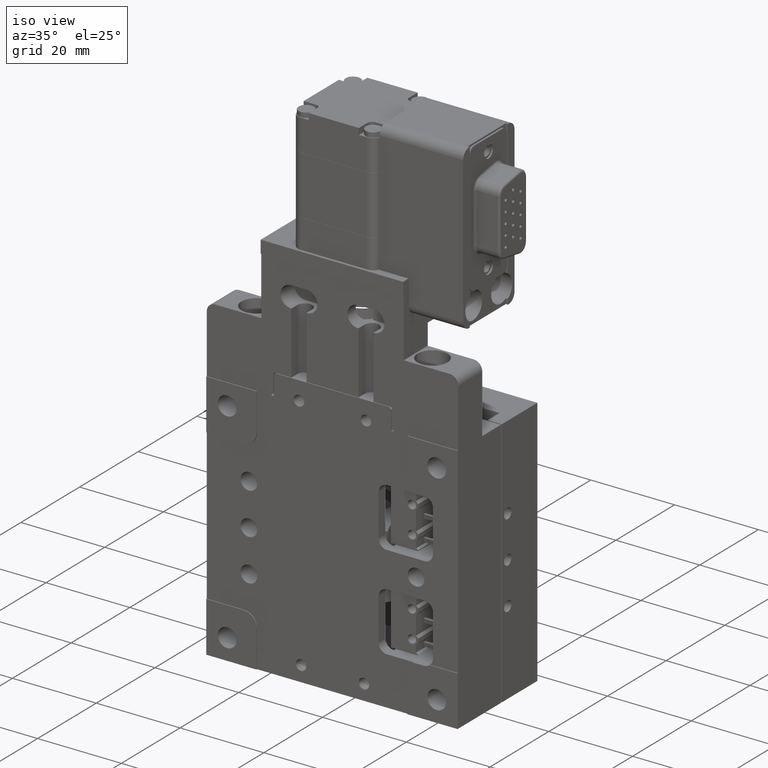
[diagram: clean part render]
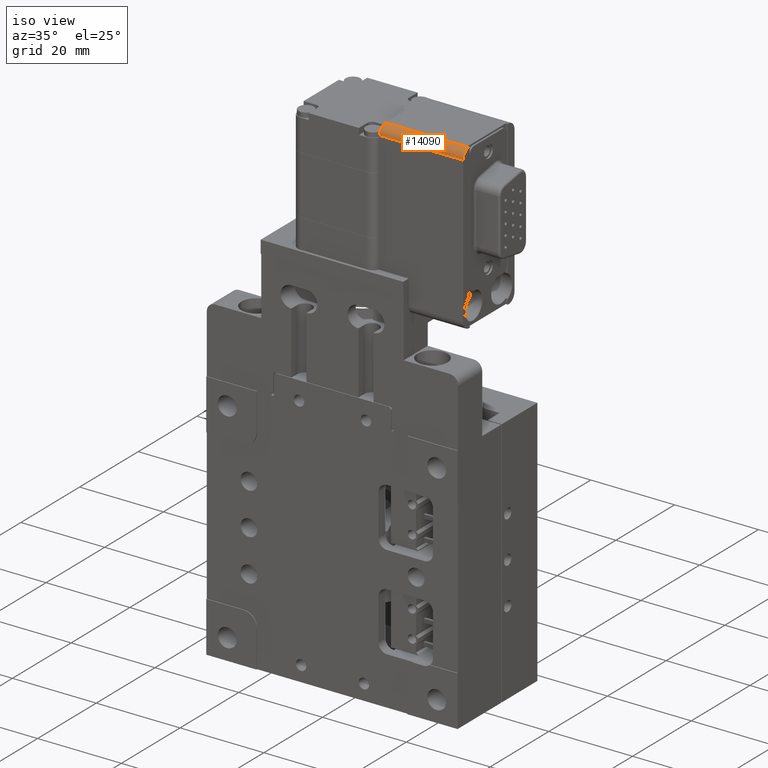
[diagram: same view with one face highlighted and labeled with its STEP entity id]
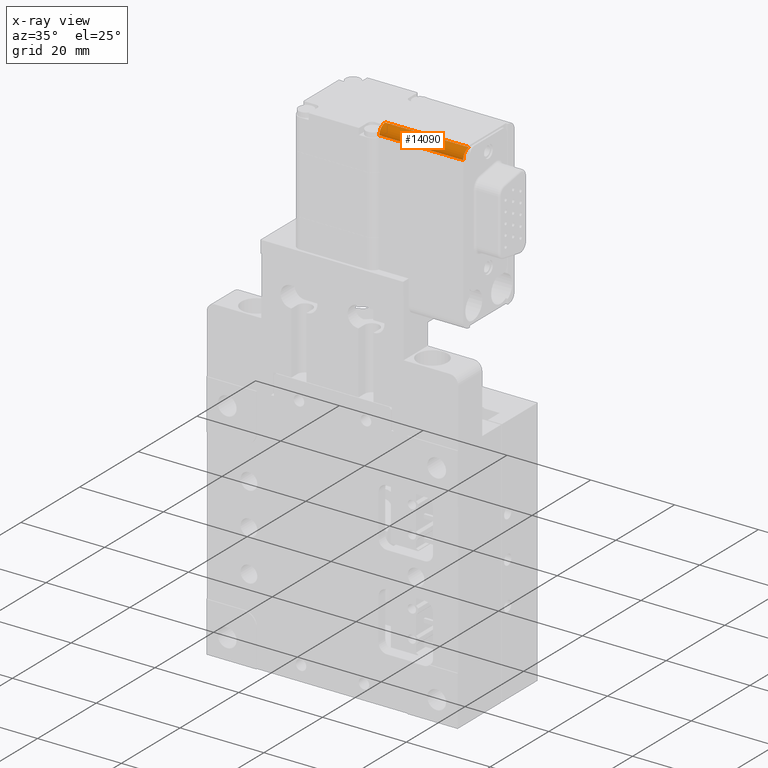
[diagram: x-ray of the same camera — body ghosted, the highlighted face saturated]
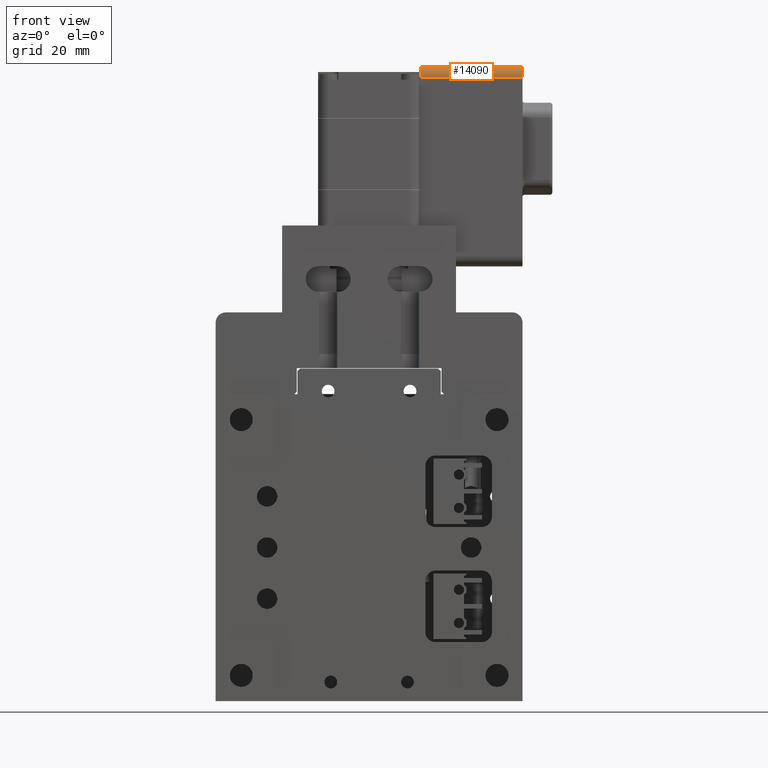
[diagram: same view with one face highlighted and labeled with its STEP entity id]
A machine part, iso view. The second image highlights one B-rep face of the part: STEP entity #14090.
The next image is the same camera in x-ray: the body ghosted, the highlighted face saturated — about 0% of this face is hidden behind the body in this view.
A second angle (front view) of the same face is appended — the face is thin or edge-on in the first view.
In plain terms, the highlighted cylindrical surface (edge-blend (fillet) strip) has radius 2 mm, axis along (-1, 0, 0).
Its self-contained STEP definition (entity closure, byte-faithful):
#233 = EDGE_CURVE ( 'NONE', #289, #11284, #32478, .T. ) ;
#289 = VERTEX_POINT ( 'NONE', #3667 ) ;
#1644 = EDGE_CURVE ( 'NONE', #11284, #23068, #15606, .T. ) ;
#2541 = FACE_OUTER_BOUND ( 'NONE', #13643, .T. ) ;
#3667 = CARTESIAN_POINT ( 'NONE',  ( 7.408280401192477900, -9.198187545985559800, 156.5000000000000300 ) ) ;
#4862 = CARTESIAN_POINT ( 'NONE',  ( 27.40828040119247800, -9.198187545985559800, 156.5000000000000300 ) ) ;
#6296 = CARTESIAN_POINT ( 'NONE',  ( 27.40828040119247800, -11.19818754598556200, 154.5000000000000300 ) ) ;
#6875 = CARTESIAN_POINT ( 'NONE',  ( 7.408280401192477900, -9.198187545985559800, 154.5000000000000300 ) ) ;
#6941 = DIRECTION ( 'NONE',  ( 1.000000000000000000, -0.0000000000000000000, -0.0000000000000000000 ) ) ;
#7574 = DIRECTION ( 'NONE',  ( -1.000000000000000000, 0.0000000000000000000, 0.0000000000000000000 ) ) ;
#8426 = CARTESIAN_POINT ( 'NONE',  ( 27.40828040119247800, -11.19818754598556200, 154.5000000000000300 ) ) ;
#9027 = ORIENTED_EDGE ( 'NONE', *, *, #12617, .F. ) ;
#9469 = DIRECTION ( 'NONE',  ( 0.0000000000000000000, 0.0000000000000000000, 1.000000000000000000 ) ) ;
#11128 = ORIENTED_EDGE ( 'NONE', *, *, #1644, .F. ) ;
#11284 = VERTEX_POINT ( 'NONE', #4862 ) ;
#11851 = CIRCLE ( 'NONE', #21973, 2.000000000000001800 ) ;
#12600 = CARTESIAN_POINT ( 'NONE',  ( 7.408280401192477900, -11.19818754598556200, 154.5000000000000300 ) ) ;
#12617 = EDGE_CURVE ( 'NONE', #18602, #289, #11851, .T. ) ;
#13643 = EDGE_LOOP ( 'NONE', ( #11128, #14341, #9027, #15294 ) ) ;
#13745 = DIRECTION ( 'NONE',  ( 1.000000000000000000, -0.0000000000000000000, -0.0000000000000000000 ) ) ;
#13852 = VECTOR ( 'NONE', #26342, 1000.000000000000000 ) ;
#14090 = ADVANCED_FACE ( 'NONE', ( #2541 ), #18983, .T. ) ;
#14341 = ORIENTED_EDGE ( 'NONE', *, *, #233, .F. ) ;
#15294 = ORIENTED_EDGE ( 'NONE', *, *, #25507, .F. ) ;
#15606 = CIRCLE ( 'NONE', #20852, 2.000000000000001800 ) ;
#17891 = DIRECTION ( 'NONE',  ( 0.0000000000000000000, 0.0000000000000000000, 1.000000000000000000 ) ) ;
#18602 = VERTEX_POINT ( 'NONE', #12600 ) ;
#18983 = CYLINDRICAL_SURFACE ( 'NONE', #24186, 2.000000000000001800 ) ;
#20356 = CARTESIAN_POINT ( 'NONE',  ( 27.40828040119247800, -9.198187545985559800, 154.5000000000000300 ) ) ;
#20852 = AXIS2_PLACEMENT_3D ( 'NONE', #22263, #6941, #24859 ) ;
#21973 = AXIS2_PLACEMENT_3D ( 'NONE', #6875, #24796, #9469 ) ;
#22263 = CARTESIAN_POINT ( 'NONE',  ( 27.40828040119247800, -9.198187545985559800, 154.5000000000000300 ) ) ;
#23068 = VERTEX_POINT ( 'NONE', #6296 ) ;
#23882 = CARTESIAN_POINT ( 'NONE',  ( 27.40828040119247800, -9.198187545985559800, 156.5000000000000300 ) ) ;
#24186 = AXIS2_PLACEMENT_3D ( 'NONE', #20356, #7574, #17891 ) ;
#24796 = DIRECTION ( 'NONE',  ( -1.000000000000000000, 0.0000000000000000000, 0.0000000000000000000 ) ) ;
#24859 = DIRECTION ( 'NONE',  ( 0.0000000000000000000, 0.0000000000000000000, 1.000000000000000000 ) ) ;
#25507 = EDGE_CURVE ( 'NONE', #23068, #18602, #27429, .T. ) ;
#26342 = DIRECTION ( 'NONE',  ( -1.000000000000000000, 0.0000000000000000000, 0.0000000000000000000 ) ) ;
#27429 = LINE ( 'NONE', #8426, #13852 ) ;
#31677 = VECTOR ( 'NONE', #13745, 1000.000000000000000 ) ;
#32478 = LINE ( 'NONE', #23882, #31677 ) ;